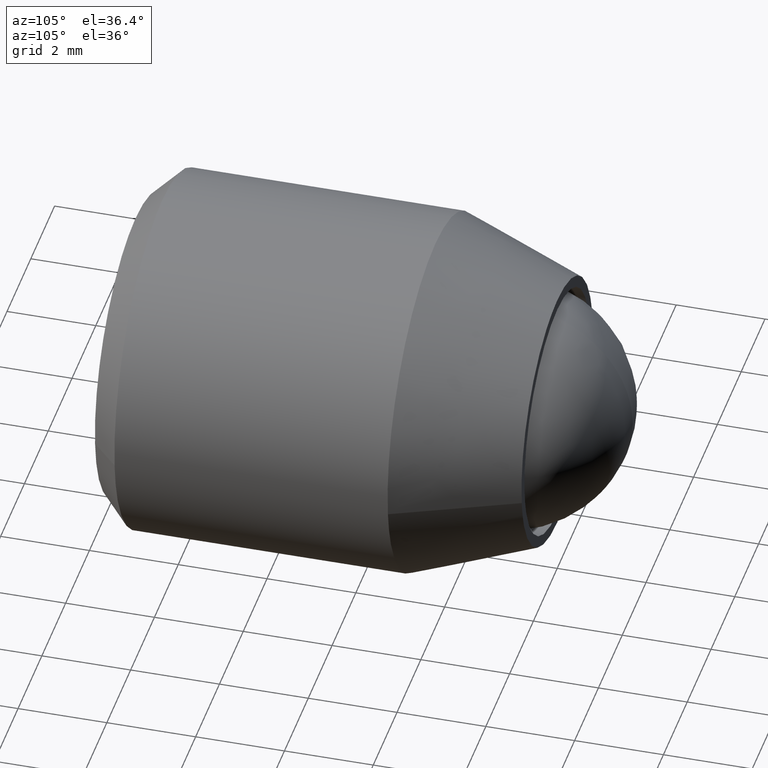
[diagram: clean part render]
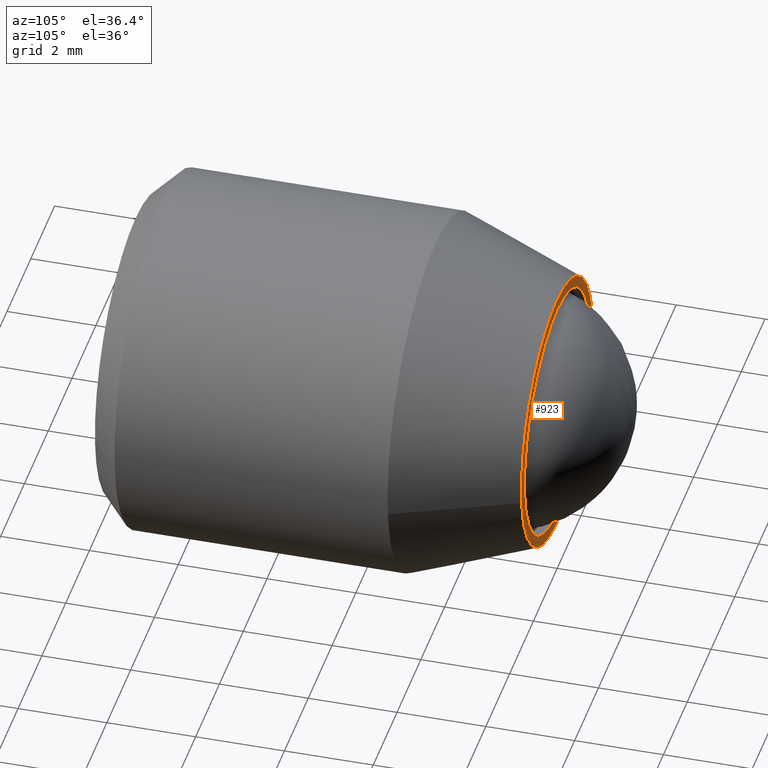
[diagram: same view with one face highlighted and labeled with its STEP entity id]
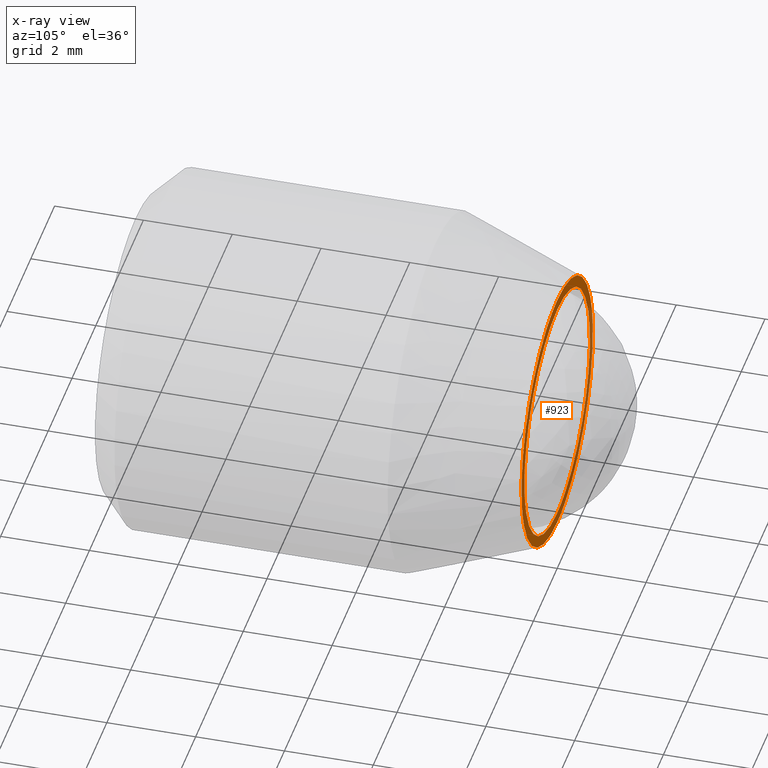
[diagram: x-ray of the same camera — body ghosted, the highlighted face saturated]
A machine part, auxiliary view. The second image highlights one B-rep face of the part: STEP entity #923.
The next image is the same camera in x-ray: the body ghosted, the highlighted face saturated — about 30% of this face is hidden behind the body in this view.
In plain terms, the highlighted face is a freeform B-spline surface patch.
Its self-contained STEP definition (entity closure, byte-faithful):
#100=CARTESIAN_POINT('',(2.744870902593660,-1.110223E-016,-0.167880100319174));
#101=VERTEX_POINT('',#100);
#107=CARTESIAN_POINT('',(0.0,0.0,-2.750000000000000));
#108=VERTEX_POINT('',#107);
#109=CARTESIAN_POINT('',(0.0,0.0,-2.750000000000000));
#110=CARTESIAN_POINT('',(2.586944878685141,0.0,-2.750000000000000));
#111=CARTESIAN_POINT('',(2.744870902593660,-1.110223E-016,-0.167880100319173));
#119=(BOUNDED_CURVE()B_SPLINE_CURVE(2,(#109,#110,#111),.UNSPECIFIED.,.F.,.U.)B_SPLINE_CURVE_WITH_KNOTS((3,3),(0.500000000000000,0.739333174927831),.UNSPECIFIED.)CURVE()GEOMETRIC_REPRESENTATION_ITEM()RATIONAL_B_SPLINE_CURVE((1.0,0.719603744106178,0.976072497499916))REPRESENTATION_ITEM(''));
#120=EDGE_CURVE('',#108,#101,#119,.T.);
#122=CARTESIAN_POINT('',(-2.730776337250088,-1.135771E-016,0.324592969599759));
#123=VERTEX_POINT('',#122);
#124=CARTESIAN_POINT('',(-2.730776337250088,-1.135771E-016,0.324592969599759));
#125=CARTESIAN_POINT('',(-2.750000000000000,0.0,0.162865734974919));
#126=CARTESIAN_POINT('',(-2.750000000000000,0.0,0.0));
#127=CARTESIAN_POINT('',(-2.750000000000000,0.0,-2.750000000000000));
#128=CARTESIAN_POINT('',(0.0,0.0,-2.750000000000000));
#136=(BOUNDED_CURVE()B_SPLINE_CURVE(2,(#124,#125,#126,#127,#128),.UNSPECIFIED.,.F.,.U.)B_SPLINE_CURVE_WITH_KNOTS((3,2,3),(0.229562546278178,0.250000000000000,0.500000000000000),.UNSPECIFIED.)CURVE()GEOMETRIC_REPRESENTATION_ITEM()RATIONAL_B_SPLINE_CURVE((0.956026896805479,0.976056033580258,1.0,0.707106781186548,1.0))REPRESENTATION_ITEM(''));
#137=EDGE_CURVE('',#123,#108,#136,.T.);
#181=CARTESIAN_POINT('',(0.0,0.0,2.750000000000000));
#182=VERTEX_POINT('',#181);
#183=CARTESIAN_POINT('',(0.0,0.0,2.750000000000000));
#184=CARTESIAN_POINT('',(-2.442481005352701,0.0,2.750000000000001));
#185=CARTESIAN_POINT('',(-2.730776337250088,-1.135771E-016,0.324592969599759));
#193=(BOUNDED_CURVE()B_SPLINE_CURVE(2,(#183,#184,#185),.UNSPECIFIED.,.F.,.U.)B_SPLINE_CURVE_WITH_KNOTS((3,3),(0.0,0.229562546278178),.UNSPECIFIED.)CURVE()GEOMETRIC_REPRESENTATION_ITEM()RATIONAL_B_SPLINE_CURVE((1.0,0.731050747606289,0.956026896805479))REPRESENTATION_ITEM(''));
#194=EDGE_CURVE('',#182,#123,#193,.T.);
#196=CARTESIAN_POINT('',(2.744870902593660,-1.110223E-016,-0.167880100319173));
#197=CARTESIAN_POINT('',(2.750000000000000,0.0,-0.084018402627073));
#198=CARTESIAN_POINT('',(2.750000000000000,0.0,0.0));
#199=CARTESIAN_POINT('',(2.750000000000000,0.0,2.750000000000000));
#200=CARTESIAN_POINT('',(0.0,0.0,2.750000000000000));
#208=(BOUNDED_CURVE()B_SPLINE_CURVE(2,(#196,#197,#198,#199,#200),.UNSPECIFIED.,.F.,.U.)B_SPLINE_CURVE_WITH_KNOTS((3,2,3),(0.739333174927831,0.750000000000000,1.0),.UNSPECIFIED.)CURVE()GEOMETRIC_REPRESENTATION_ITEM()RATIONAL_B_SPLINE_CURVE((0.976072497499916,0.987503037080369,1.0,0.707106781186548,1.0))REPRESENTATION_ITEM(''));
#209=EDGE_CURVE('',#101,#182,#208,.T.);
#484=CARTESIAN_POINT('',(2.979028274472389,0.000001302136473,-0.354101251421632));
#485=VERTEX_POINT('',#484);
#491=CARTESIAN_POINT('',(0.0,0.0,2.999999999999999));
#492=VERTEX_POINT('',#491);
#493=CARTESIAN_POINT('',(2.979028274472389,0.000001302136473,-0.354101251421632));
#494=CARTESIAN_POINT('',(2.999999541751461,0.000001267889521,-0.177671598799914));
#495=CARTESIAN_POINT('',(2.999999555687619,0.000001229330731,0.000000052813049));
#496=CARTESIAN_POINT('',(2.999999791000763,0.000000578262495,3.000000024842628));
#497=CARTESIAN_POINT('',(0.0,0.0,2.999999999999999));
#505=(BOUNDED_CURVE()B_SPLINE_CURVE(2,(#493,#494,#495,#496,#497),.UNSPECIFIED.,.F.,.U.)B_SPLINE_CURVE_WITH_KNOTS((3,2,3),(0.229562552746596,0.250000000000000,0.500000000000000),.UNSPECIFIED.)CURVE()GEOMETRIC_REPRESENTATION_ITEM()RATIONAL_B_SPLINE_CURVE((0.956026909483853,0.976056041158482,1.0,0.707106781186548,1.0))REPRESENTATION_ITEM(''));
#506=EDGE_CURVE('',#485,#492,#505,.T.);
#508=CARTESIAN_POINT('',(-2.994404395265616,-4.958464E-013,0.183145618607279));
#509=VERTEX_POINT('',#508);
#510=CARTESIAN_POINT('',(0.0,0.0,2.999999999999999));
#511=CARTESIAN_POINT('',(-2.822118200711971,0.0,2.999999999999999));
#512=CARTESIAN_POINT('',(-2.994404395265616,-4.958464E-013,0.183145618607279));
#520=(BOUNDED_CURVE()B_SPLINE_CURVE(2,(#510,#511,#512),.UNSPECIFIED.,.F.,.U.)B_SPLINE_CURVE_WITH_KNOTS((3,3),(0.500000000000000,0.739332962241656),.UNSPECIFIED.)CURVE()GEOMETRIC_REPRESENTATION_ITEM()RATIONAL_B_SPLINE_CURVE((1.0,0.719603993283531,0.976072041672533))REPRESENTATION_ITEM(''));
#521=EDGE_CURVE('',#492,#509,#520,.T.);
#554=CARTESIAN_POINT('',(0.0,0.0,-3.000000000000001));
#555=VERTEX_POINT('',#554);
#556=CARTESIAN_POINT('',(-2.994404395265616,-4.958464E-013,0.183145618607279));
#557=CARTESIAN_POINT('',(-3.000000000000000,0.0,0.091658289898472));
#558=CARTESIAN_POINT('',(-3.0,0.0,-6.735335E-016));
#559=CARTESIAN_POINT('',(-3.0,0.0,-3.0));
#560=CARTESIAN_POINT('',(0.0,0.0,-3.000000000000001));
#568=(BOUNDED_CURVE()B_SPLINE_CURVE(2,(#556,#557,#558,#559,#560),.UNSPECIFIED.,.F.,.U.)B_SPLINE_CURVE_WITH_KNOTS((3,2,3),(0.739332962241657,0.750000000000000,1.0),.UNSPECIFIED.)CURVE()GEOMETRIC_REPRESENTATION_ITEM()RATIONAL_B_SPLINE_CURVE((0.976072041672535,0.987502787903017,1.0,0.707106781186548,1.0))REPRESENTATION_ITEM(''));
#569=EDGE_CURVE('',#509,#555,#568,.T.);
#571=CARTESIAN_POINT('',(0.0,0.0,-3.000000000000001));
#572=CARTESIAN_POINT('',(2.664524600498623,0.000000651068236,-2.999999972029579));
#573=CARTESIAN_POINT('',(2.979028274472389,0.000001302136473,-0.354101251421632));
#581=(BOUNDED_CURVE()B_SPLINE_CURVE(2,(#571,#572,#573),.UNSPECIFIED.,.F.,.U.)B_SPLINE_CURVE_WITH_KNOTS((3,3),(0.0,0.229562552746596),.UNSPECIFIED.)CURVE()GEOMETRIC_REPRESENTATION_ITEM()RATIONAL_B_SPLINE_CURVE((1.0,0.731050740028066,0.956026909483853))REPRESENTATION_ITEM(''));
#582=EDGE_CURVE('',#555,#485,#581,.T.);
#906=CARTESIAN_POINT('',(-3.299626949601171,0.0,3.299699988370834));
#907=CARTESIAN_POINT('',(-3.299626949601171,0.0,-3.299700149303377));
#908=CARTESIAN_POINT('',(3.299644974045751,0.0,3.299699988370834));
#909=CARTESIAN_POINT('',(3.299644974045751,0.0,-3.299700149303377));
#910=B_SPLINE_SURFACE_WITH_KNOTS('',1,1,((#906,#908),(#907,#909)),.UNSPECIFIED.,.F.,.F.,.U.,(2,2),(2,2),(0.0,6.599400137674212),(0.0,6.599271923646922),.UNSPECIFIED.);
#911=ORIENTED_EDGE('',*,*,#569,.F.);
#912=ORIENTED_EDGE('',*,*,#521,.F.);
#913=ORIENTED_EDGE('',*,*,#506,.F.);
#914=ORIENTED_EDGE('',*,*,#582,.F.);
#915=EDGE_LOOP('',(#911,#912,#913,#914));
#916=FACE_OUTER_BOUND('',#915,.T.);
#917=ORIENTED_EDGE('',*,*,#120,.T.);
#918=ORIENTED_EDGE('',*,*,#209,.T.);
#919=ORIENTED_EDGE('',*,*,#194,.T.);
#920=ORIENTED_EDGE('',*,*,#137,.T.);
#921=EDGE_LOOP('',(#917,#918,#919,#920));
#922=FACE_BOUND('',#921,.T.);
#923=ADVANCED_FACE('',(#916,#922),#910,.F.);